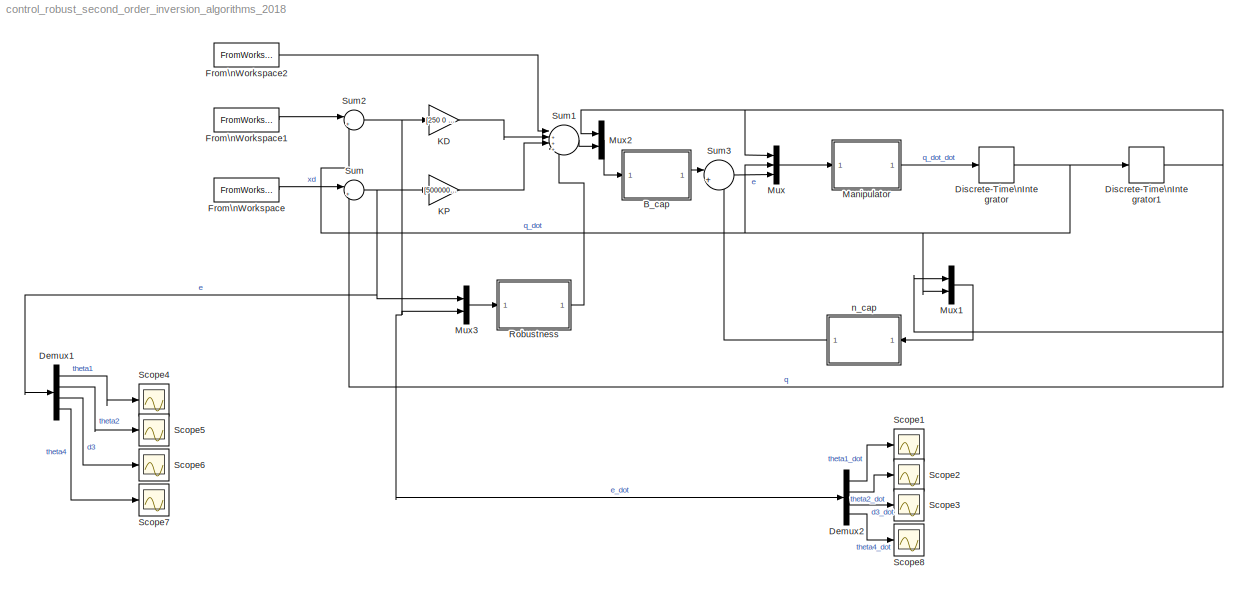
MODEL control_robust_second_order_inversion_algorithms_2018
KIND model
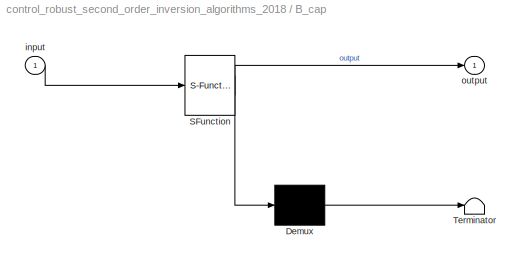
BLOCK [SubSystem] B_cap
  ErrorFcn = Stateflow.Translate.translate
  PermitHierarchicalResolution = ExplicitOnly
  Ports = [1, 1]
  RequestExecContextInheritance = off
  SFBlockType = MATLAB Function
  SID = 52
  TreatAsAtomicUnit = on
BLOCK [Demux] B_cap/ Demux 
  Outputs = 1
  Ports = [1, 1]
  SID = 52::23
BLOCK [S-Function] B_cap/ SFunction 
  EnableBusSupport = on
  FunctionName = sf_sfun
  PortCounts = [1 2]
  Ports = [1, 2]
  SFcnIsStateOwnerBlock = off
  SFunctionDeploymentMode = off
  SID = 52::22
  Tag = Stateflow S-Function 2
BLOCK [Terminator] B_cap/ Terminator 
  SID = 52::24
BLOCK [Inport] B_cap/input
  IconDisplay = Port number
  SID = 52::1
BLOCK [Outport] B_cap/output
  IconDisplay = Port number
  SID = 52::5
BLOCK [Demux] Demux1
  DisplayOption = bar
  Ports = [1, 4]
  SID = 46
BLOCK [Demux] Demux2
  DisplayOption = bar
  Ports = [1, 4]
  SID = 57
BLOCK [DiscreteIntegrator] Discrete-Time\nIntegrator
  ICPrevOutput = DiscIntNeverNeededParam
  ICPrevScaledInput = DiscIntNeverNeededParam
  InitialCondition = q0_dot
  InitialConditionSetting = Auto
  Ports = [1, 1]
  SID = 11
  SampleTime = Tc
BLOCK [DiscreteIntegrator] Discrete-Time\nIntegrator1
  ICPrevOutput = DiscIntNeverNeededParam
  ICPrevScaledInput = DiscIntNeverNeededParam
  InitialCondition = q0
  InitialConditionSetting = Auto
  Ports = [1, 1]
  SID = 36
  SampleTime = Tc
BLOCK [FromWorkspace] From\nWorkspace
  SID = 2
  SampleTime = Tc
  VariableName = q
  ZeroCross = on
BLOCK [FromWorkspace] From\nWorkspace1
  SID = 5
  SampleTime = Tc
  VariableName = q_dot
  ZeroCross = on
BLOCK [FromWorkspace] From\nWorkspace2
  SID = 32
  SampleTime = Tc
  VariableName = q_dot_dot
  ZeroCross = on
BLOCK [Gain] KD
  Gain = [250 0 0 0;0 550 0 0;0 0 550 0;0 0 0 700]
  Multiplication = Matrix(K*u) (u vector)
  OutDataTypeStr = Inherit: Inherit via internal rule
  ParamDataTypeStr = Inherit: Inherit via internal rule
  SID = 35
  SaturateOnIntegerOverflow = off
BLOCK [Gain] KP
  Gain = [500000 0 0 0;0 500000 0 0;0 0 500000 0;0 0 0 500000]
  Multiplication = Matrix(K*u) (u vector)
  OutDataTypeStr = Inherit: Inherit via internal rule
  ParamDataTypeStr = Inherit: Inherit via internal rule
  SID = 8
  SaturateOnIntegerOverflow = off
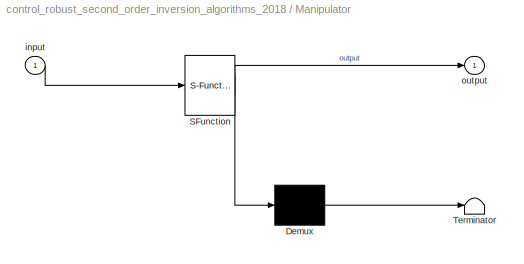
BLOCK [SubSystem] Manipulator
  ErrorFcn = Stateflow.Translate.translate
  PermitHierarchicalResolution = ExplicitOnly
  Ports = [1, 1]
  RequestExecContextInheritance = off
  SFBlockType = MATLAB Function
  SID = 54
  TreatAsAtomicUnit = on
BLOCK [Demux] Manipulator/ Demux 
  Outputs = 1
  Ports = [1, 1]
  SID = 54::23
BLOCK [S-Function] Manipulator/ SFunction 
  EnableBusSupport = on
  FunctionName = sf_sfun
  PortCounts = [1 2]
  Ports = [1, 2]
  SFcnIsStateOwnerBlock = off
  SFunctionDeploymentMode = off
  SID = 54::22
  Tag = Stateflow S-Function 1
BLOCK [Terminator] Manipulator/ Terminator 
  SID = 54::24
BLOCK [Inport] Manipulator/input
  IconDisplay = Port number
  SID = 54::1
BLOCK [Outport] Manipulator/output
  IconDisplay = Port number
  SID = 54::5
BLOCK [Mux] Mux
  DisplayOption = bar
  Inputs = 3
  Ports = [3, 1]
  SID = 21
BLOCK [Mux] Mux1
  DisplayOption = bar
  Inputs = 2
  Ports = [2, 1]
  SID = 40
BLOCK [Mux] Mux2
  DisplayOption = bar
  Inputs = 2
  Ports = [2, 1]
  SID = 53
BLOCK [Mux] Mux3
  DisplayOption = bar
  Inputs = 2
  Ports = [2, 1]
  SID = 55
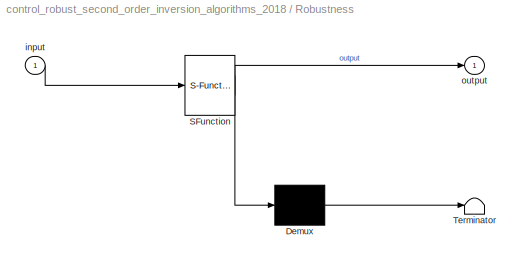
BLOCK [SubSystem] Robustness
  ErrorFcn = Stateflow.Translate.translate
  PermitHierarchicalResolution = ExplicitOnly
  Ports = [1, 1]
  RequestExecContextInheritance = off
  SFBlockType = MATLAB Function
  SID = 56
  TreatAsAtomicUnit = on
BLOCK [Demux] Robustness/ Demux 
  Outputs = 1
  Ports = [1, 1]
  SID = 56::23
BLOCK [S-Function] Robustness/ SFunction 
  EnableBusSupport = on
  FunctionName = sf_sfun
  PortCounts = [1 2]
  Ports = [1, 2]
  SFcnIsStateOwnerBlock = off
  SFunctionDeploymentMode = off
  SID = 56::22
  Tag = Stateflow S-Function 4
BLOCK [Terminator] Robustness/ Terminator 
  SID = 56::24
BLOCK [Inport] Robustness/input
  IconDisplay = Port number
  SID = 56::1
BLOCK [Outport] Robustness/output
  IconDisplay = Port number
  SID = 56::5
BLOCK [Scope] Scope1
  Floating = off
  NumInputPorts = 1
  Ports = [1]
  SID = 58
  ScopeSpecificationString = Simulink.scopes.TimeScopeBlockCfg('CurrentConfiguration', extmgr.ConfigurationSet(extmgr.Configuration('Core','General UI',true),extmgr.Configuration('Core','Source UI',true),extmgr.Configuration('Sources','WiredSimulink',true,'DataLoggingVariableName','theta1e','DataLogging',true,'DataLoggingSaveFormat','StructureWithTime'),extmgr.Configuration('Visuals','Time Domain',true,'SerializedDisplays',{s...<+1426ch>
BLOCK [Scope] Scope2
  Floating = off
  NumInputPorts = 1
  Ports = [1]
  SID = 59
  ScopeSpecificationString = Simulink.scopes.TimeScopeBlockCfg('CurrentConfiguration', extmgr.ConfigurationSet(extmgr.Configuration('Core','General UI',true),extmgr.Configuration('Core','Source UI',true),extmgr.Configuration('Sources','WiredSimulink',true,'DataLoggingVariableName','theta2e','DataLogging',true,'DataLoggingSaveFormat','StructureWithTime'),extmgr.Configuration('Visuals','Time Domain',true,'SerializedDisplays',{s...<+1436ch>
BLOCK [Scope] Scope3
  Floating = off
  NumInputPorts = 1
  Ports = [1]
  SID = 60
  ScopeSpecificationString = Simulink.scopes.TimeScopeBlockCfg('CurrentConfiguration', extmgr.ConfigurationSet(extmgr.Configuration('Core','General UI',true),extmgr.Configuration('Core','Source UI',true),extmgr.Configuration('Sources','WiredSimulink',true,'DataLoggingVariableName','d3e','DataLogging',true,'DataLoggingSaveFormat','StructureWithTime'),extmgr.Configuration('Visuals','Time Domain',true,'SerializedDisplays',{struc...<+1416ch>
BLOCK [Scope] Scope4
  Floating = off
  NumInputPorts = 1
  Ports = [1]
  SID = 45
  ScopeSpecificationString = Simulink.scopes.TimeScopeBlockCfg('CurrentConfiguration', extmgr.ConfigurationSet(extmgr.Configuration('Core','General UI',true),extmgr.Configuration('Core','Source UI',true),extmgr.Configuration('Sources','WiredSimulink',true,'DataLoggingVariableName','xe','DataLogging',true,'DataLoggingSaveFormat','StructureWithTime'),extmgr.Configuration('Visuals','Time Domain',true,'SerializedDisplays',{struct...<+1424ch>
BLOCK [Scope] Scope5
  Floating = off
  NumInputPorts = 1
  Ports = [1]
  SID = 48
  ScopeSpecificationString = Simulink.scopes.TimeScopeBlockCfg('CurrentConfiguration', extmgr.ConfigurationSet(extmgr.Configuration('Core','General UI',true),extmgr.Configuration('Core','Source UI',true),extmgr.Configuration('Sources','WiredSimulink',true,'DataLoggingVariableName','ye','DataLogging',true,'DataLoggingSaveFormat','StructureWithTime'),extmgr.Configuration('Visuals','Time Domain',true,'SerializedDisplays',{struct...<+1420ch>
BLOCK [Scope] Scope6
  Floating = off
  NumInputPorts = 1
  Ports = [1]
  SID = 49
  ScopeSpecificationString = Simulink.scopes.TimeScopeBlockCfg('CurrentConfiguration', extmgr.ConfigurationSet(extmgr.Configuration('Core','General UI',true),extmgr.Configuration('Core','Source UI',true),extmgr.Configuration('Sources','WiredSimulink',true,'DataLoggingVariableName','ze','DataLogging',true,'DataLoggingSaveFormat','StructureWithTime'),extmgr.Configuration('Visuals','Time Domain',true,'SerializedDisplays',{struct...<+1424ch>
BLOCK [Scope] Scope7
  Floating = off
  NumInputPorts = 1
  Ports = [1]
  SID = 50
  ScopeSpecificationString = Simulink.scopes.TimeScopeBlockCfg('CurrentConfiguration', extmgr.ConfigurationSet(extmgr.Configuration('Core','General UI',true),extmgr.Configuration('Core','Source UI',true),extmgr.Configuration('Sources','WiredSimulink',true,'DataLoggingVariableName','thetae','DataLogging',true,'DataLoggingSaveFormat','StructureWithTime'),extmgr.Configuration('Visuals','Time Domain',true,'SerializedDisplays',{st...<+1424ch>
BLOCK [Scope] Scope8
  Floating = off
  NumInputPorts = 1
  Ports = [1]
  SID = 61
  ScopeSpecificationString = Simulink.scopes.TimeScopeBlockCfg('CurrentConfiguration', extmgr.ConfigurationSet(extmgr.Configuration('Core','General UI',true),extmgr.Configuration('Core','Source UI',true),extmgr.Configuration('Sources','WiredSimulink',true,'DataLoggingVariableName','theta4e','DataLogging',true,'DataLoggingSaveFormat','StructureWithTime'),extmgr.Configuration('Visuals','Time Domain',true,'SerializedDisplays',{s...<+1424ch>
BLOCK [Sum] Sum
  IconShape = round
  InputSameDT = off
  Inputs = |+-
  OutDataTypeStr = Inherit: Inherit via internal rule
  Ports = [2, 1]
  SID = 6
  SaturateOnIntegerOverflow = off
BLOCK [Sum] Sum1
  IconShape = round
  InputSameDT = off
  Inputs = |++++
  OutDataTypeStr = Inherit: Inherit via internal rule
  Ports = [4, 1]
  SID = 13
  SaturateOnIntegerOverflow = off
BLOCK [Sum] Sum2
  IconShape = round
  InputSameDT = off
  Inputs = |+-
  OutDataTypeStr = Inherit: Inherit via internal rule
  Ports = [2, 1]
  SID = 34
  SaturateOnIntegerOverflow = off
BLOCK [Sum] Sum3
  IconShape = round
  InputSameDT = off
  Inputs = |+-
  OutDataTypeStr = Inherit: Inherit via internal rule
  Ports = [2, 1]
  SID = 51
  SaturateOnIntegerOverflow = off
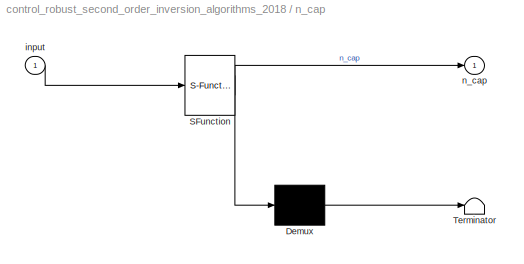
BLOCK [SubSystem] n_cap
  ErrorFcn = Stateflow.Translate.translate
  PermitHierarchicalResolution = ExplicitOnly
  Ports = [1, 1]
  RequestExecContextInheritance = off
  SFBlockType = MATLAB Function
  SID = 37
  TreatAsAtomicUnit = on
BLOCK [Demux] n_cap/ Demux 
  Outputs = 1
  Ports = [1, 1]
  SID = 37::23
BLOCK [S-Function] n_cap/ SFunction 
  EnableBusSupport = on
  FunctionName = sf_sfun
  PortCounts = [1 2]
  Ports = [1, 2]
  SFcnIsStateOwnerBlock = off
  SFunctionDeploymentMode = off
  SID = 37::22
  Tag = Stateflow S-Function 3
BLOCK [Terminator] n_cap/ Terminator 
  SID = 37::24
BLOCK [Inport] n_cap/input
  IconDisplay = Port number
  SID = 37::1
BLOCK [Outport] n_cap/n_cap
  IconDisplay = Port number
  SID = 37::5
LINE B_cap/ Demux :1 -> B_cap/ Terminator :1
LINE B_cap/ SFunction :1 -> B_cap/ Demux :1
LINE B_cap/ SFunction :2 -> B_cap/output:1
LINE B_cap/input:1 -> B_cap/ SFunction :1
LINE B_cap:1 -> Sum3:1
LINE Demux1:1 -> Scope4:1
LINE Demux1:2 -> Scope5:1
LINE Demux1:3 -> Scope6:1
LINE Demux1:4 -> Scope7:1
LINE Demux2:1 -> Scope1:1
LINE Demux2:2 -> Scope2:1
LINE Demux2:3 -> Scope3:1
LINE Demux2:4 -> Scope8:1
NET Discrete-Time\nIntegrator1:1 -> Mux1:1, Mux2:1, Mux:1, Sum:2
NET Discrete-Time\nIntegrator:1 -> Discrete-Time\nIntegrator1:1, Mux1:2, Mux:2, Sum2:2
LINE From\nWorkspace1:1 -> Sum2:1
LINE From\nWorkspace2:1 -> Sum1:1
LINE From\nWorkspace:1 -> Sum:1
LINE KD:1 -> Sum1:2
LINE KP:1 -> Sum1:3
LINE Manipulator/ Demux :1 -> Manipulator/ Terminator :1
LINE Manipulator/ SFunction :1 -> Manipulator/ Demux :1
LINE Manipulator/ SFunction :2 -> Manipulator/output:1
LINE Manipulator/input:1 -> Manipulator/ SFunction :1
LINE Manipulator:1 -> Discrete-Time\nIntegrator:1
LINE Mux1:1 -> n_cap:1
LINE Mux2:1 -> B_cap:1
LINE Mux3:1 -> Robustness:1
LINE Mux:1 -> Manipulator:1
LINE Robustness/ Demux :1 -> Robustness/ Terminator :1
LINE Robustness/ SFunction :1 -> Robustness/ Demux :1
LINE Robustness/ SFunction :2 -> Robustness/output:1
LINE Robustness/input:1 -> Robustness/ SFunction :1
LINE Robustness:1 -> Sum1:4
LINE Sum1:1 -> Mux2:2
NET Sum2:1 -> Demux2:1, KD:1, Mux3:2
LINE Sum3:1 -> Mux:3
NET Sum:1 -> Demux1:1, KP:1, Mux3:1
LINE n_cap/ Demux :1 -> n_cap/ Terminator :1
LINE n_cap/ SFunction :1 -> n_cap/ Demux :1
LINE n_cap/ SFunction :2 -> n_cap/n_cap:1
LINE n_cap/input:1 -> n_cap/ SFunction :1
LINE n_cap:1 -> Sum3:2
note: NET lines group one-source signal fan-out (src -> all destinations, sorted); 1:1 wires keep LINE
CHART Manipulator states=1 transitions=1
  STATE_LABEL 'eML_blk_kernel()'
CHART B_cap states=1 transitions=1
  STATE_LABEL 'eML_blk_kernel()'
CHART n_cap states=1 transitions=1
  STATE_LABEL 'eML_blk_kernel()'
CHART Robustness states=1 transitions=1
  STATE_LABEL 'eML_blk_kernel()'
